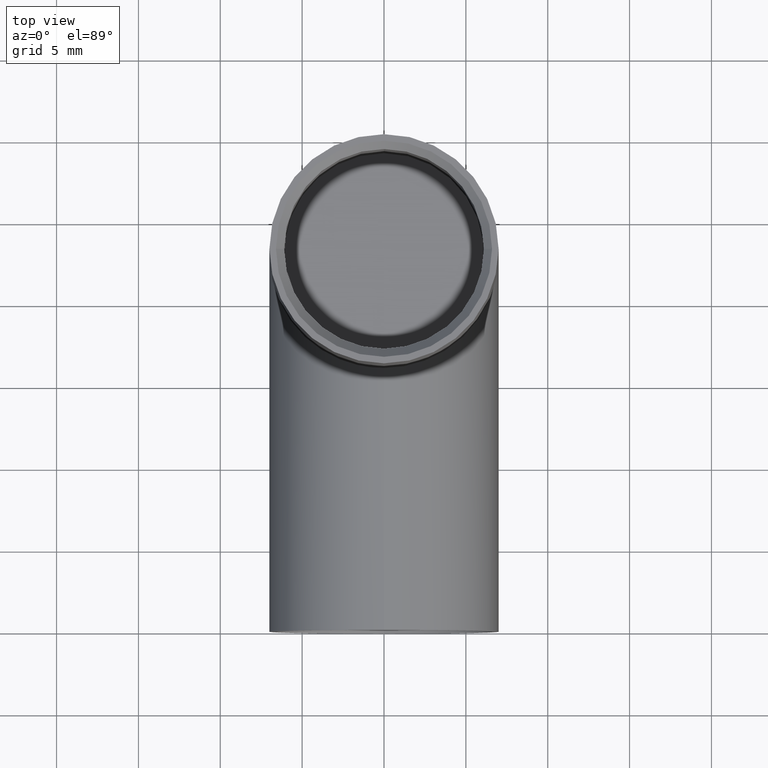
[diagram: clean part render]
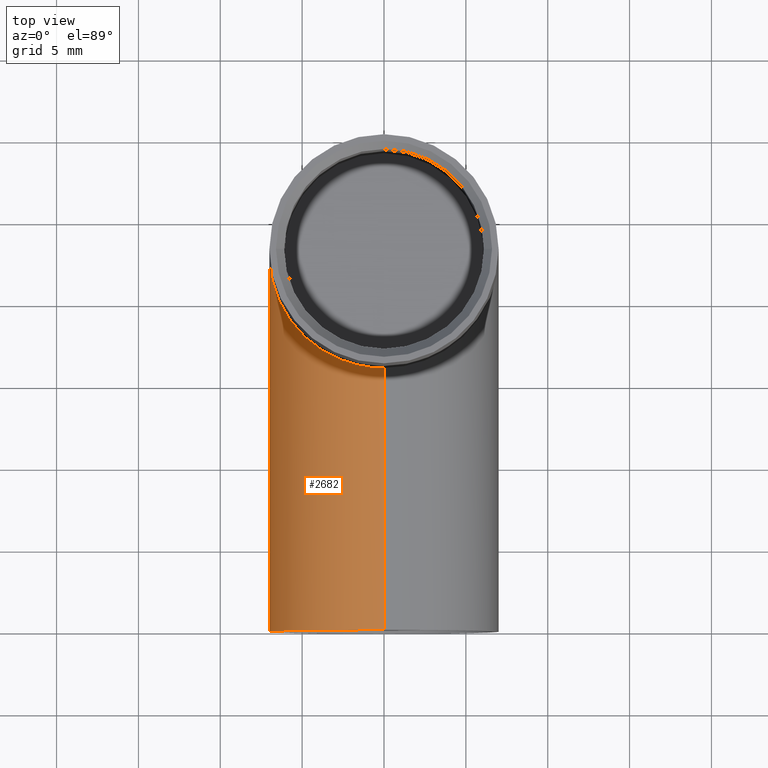
[diagram: same view with one face highlighted and labeled with its STEP entity id]
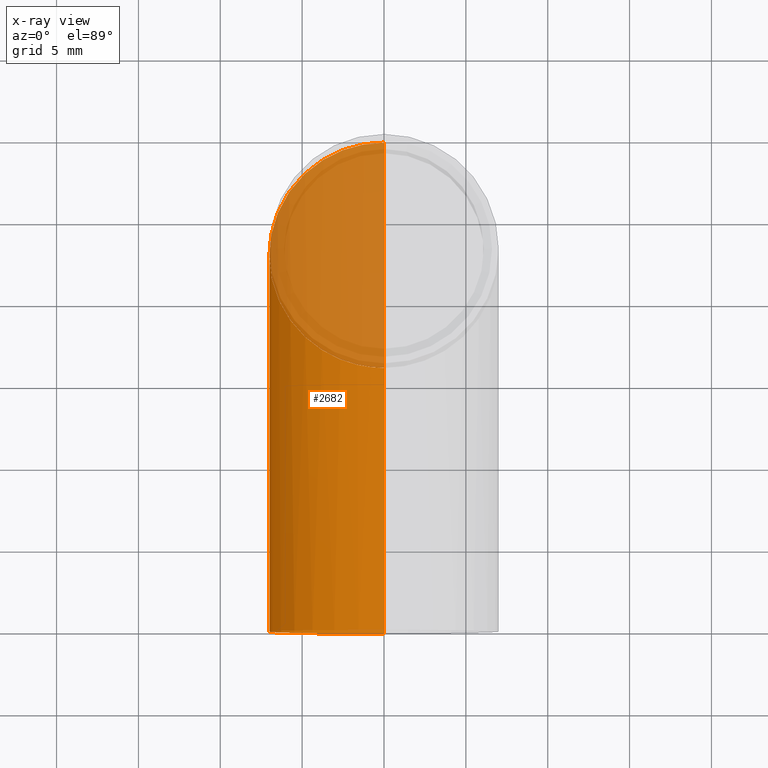
[diagram: x-ray of the same camera — body ghosted, the highlighted face saturated]
A machine part, top view. The second image highlights one B-rep face of the part: STEP entity #2682.
The next image is the same camera in x-ray: the body ghosted, the highlighted face saturated — about 38% of this face is hidden behind the body in this view.
In plain terms, the highlighted cylindrical surface (partial cylindrical patch) has radius 7 mm, axis along (-0, -1, -0).
Its self-contained STEP definition (entity closure, byte-faithful):
#388 = ORIENTED_EDGE ( 'NONE', *, *, #4598, .T. ) ;
#832 = CIRCLE ( 'NONE', #5502, 7.000000000000000000 ) ;
#1149 = CYLINDRICAL_SURFACE ( 'NONE', #5086, 7.000000000000000000 ) ;
#1489 = ORIENTED_EDGE ( 'NONE', *, *, #10112, .F. ) ;
#1540 = CARTESIAN_POINT ( 'NONE',  ( 8.572527594031473190E-16, 42.79898987322332715, 7.000000000000000000 ) ) ;
#1588 = EDGE_CURVE ( 'NONE', #4719, #9612, #5037, .T. ) ;
#1772 = CARTESIAN_POINT ( 'NONE',  ( -7.000000000000000000, 23.00000000000000000, 0.000000000000000000 ) ) ;
#2090 = CARTESIAN_POINT ( 'NONE',  ( 0.000000000000000000, 0.000000000000000000, 0.000000000000000000 ) ) ;
#2193 = EDGE_LOOP ( 'NONE', ( #6268, #1489, #9346, #4943, #388 ) ) ;
#2411 = VERTEX_POINT ( 'NONE', #6684 ) ;
#2480 = CARTESIAN_POINT ( 'NONE',  ( 0.000000000000000000, 42.79898987322332715, 0.000000000000000000 ) ) ;
#2682 = ADVANCED_FACE ( 'NONE', ( #9357 ), #1149, .T. ) ;
#3593 = CARTESIAN_POINT ( 'NONE',  ( 0.000000000000000000, 30.00000000000000355, -7.000000000000000000 ) ) ;
#3716 = CARTESIAN_POINT ( 'NONE',  ( -7.000000000000000888, 27.10050506338833642, -4.100505063388335536 ) ) ;
#4078 = CARTESIAN_POINT ( 'NONE',  ( -4.100505063388336424, 16.00000000000000000, 6.999999999999998224 ) ) ;
#4278 = DIRECTION ( 'NONE',  ( -0.000000000000000000, -1.000000000000000000, -0.000000000000000000 ) ) ;
#4306 = EDGE_CURVE ( 'NONE', #6492, #2411, #12334, .T. ) ;
#4430 = VECTOR ( 'NONE', #5364, 1000.000000000000000 ) ;
#4598 = EDGE_CURVE ( 'NONE', #2411, #9612, #832, .T. ) ;
#4719 = VERTEX_POINT ( 'NONE', #5333 ) ;
#4943 = ORIENTED_EDGE ( 'NONE', *, *, #4306, .T. ) ;
#4959 = CARTESIAN_POINT ( 'NONE',  ( -7.000000000000002665, 18.89949493661166713, 4.100505063388333760 ) ) ;
#5037 = LINE ( 'NONE', #1540, #4430 ) ;
#5086 = AXIS2_PLACEMENT_3D ( 'NONE', #2480, #9134, #6110 ) ;
#5333 = CARTESIAN_POINT ( 'NONE',  ( 8.572527594031473190E-16, 15.99999999999999645, 7.000000000000000000 ) ) ;
#5364 = DIRECTION ( 'NONE',  ( -0.000000000000000000, -1.000000000000000000, -0.000000000000000000 ) ) ;
#5502 = AXIS2_PLACEMENT_3D ( 'NONE', #2090, #8730, #9706 ) ;
#5944 = CARTESIAN_POINT ( 'NONE',  ( 8.572527594031473190E-16, 15.99999999999999645, 7.000000000000000000 ) ) ;
#6110 = DIRECTION ( 'NONE',  ( 0.000000000000000000, 0.000000000000000000, -1.000000000000000000 ) ) ;
#6157 = CARTESIAN_POINT ( 'NONE',  ( 0.000000000000000000, 42.79898987322332715, -7.000000000000000000 ) ) ;
#6268 = ORIENTED_EDGE ( 'NONE', *, *, #1588, .F. ) ;
#6479 =( BOUNDED_CURVE ( )  B_SPLINE_CURVE ( 3, ( #6793, #4959, #4078, #5944 ),
 .UNSPECIFIED., .F., .F. ) 
 B_SPLINE_CURVE_WITH_KNOTS ( ( 4, 4 ),
 ( 4.712388980384689674, 6.283185307179586232 ),
 .UNSPECIFIED. ) 
 CURVE ( )  GEOMETRIC_REPRESENTATION_ITEM ( )  RATIONAL_B_SPLINE_CURVE ( ( 1.000000000000000000, 0.8047378541243649375, 0.8047378541243649375, 1.000000000000000000 ) ) 
 REPRESENTATION_ITEM ( '' )  );
#6492 = VERTEX_POINT ( 'NONE', #10904 ) ;
#6684 = CARTESIAN_POINT ( 'NONE',  ( 0.000000000000000000, 0.000000000000000000, -7.000000000000000000 ) ) ;
#6793 = CARTESIAN_POINT ( 'NONE',  ( -7.000000000000000000, 23.00000000000000000, 0.000000000000000000 ) ) ;
#7103 = CARTESIAN_POINT ( 'NONE',  ( -7.000000000000000000, 23.00000000000000000, 0.000000000000000000 ) ) ;
#7432 = CARTESIAN_POINT ( 'NONE',  ( -4.100505063388335536, 30.00000000000000000, -7.000000000000000888 ) ) ;
#8335 = CARTESIAN_POINT ( 'NONE',  ( 8.572527594031473190E-16, 0.000000000000000000, 7.000000000000000000 ) ) ;
#8730 = DIRECTION ( 'NONE',  ( 0.000000000000000000, 1.000000000000000000, 0.000000000000000000 ) ) ;
#9134 = DIRECTION ( 'NONE',  ( -0.000000000000000000, -1.000000000000000000, -0.000000000000000000 ) ) ;
#9346 = ORIENTED_EDGE ( 'NONE', *, *, #9914, .F. ) ;
#9357 = FACE_OUTER_BOUND ( 'NONE', #2193, .T. ) ;
#9612 = VERTEX_POINT ( 'NONE', #8335 ) ;
#9706 = DIRECTION ( 'NONE',  ( 0.000000000000000000, 0.000000000000000000, 1.000000000000000000 ) ) ;
#9914 = EDGE_CURVE ( 'NONE', #6492, #11529, #12035, .T. ) ;
#10112 = EDGE_CURVE ( 'NONE', #11529, #4719, #6479, .T. ) ;
#10904 = CARTESIAN_POINT ( 'NONE',  ( 0.000000000000000000, 30.00000000000000355, -7.000000000000000000 ) ) ;
#11529 = VERTEX_POINT ( 'NONE', #7103 ) ;
#11712 = VECTOR ( 'NONE', #4278, 1000.000000000000000 ) ;
#12035 =( BOUNDED_CURVE ( )  B_SPLINE_CURVE ( 3, ( #3593, #7432, #3716, #1772 ),
 .UNSPECIFIED., .F., .T. ) 
 B_SPLINE_CURVE_WITH_KNOTS ( ( 4, 4 ),
 ( 3.141592653589793116, 4.712388980384689674 ),
 .UNSPECIFIED. ) 
 CURVE ( )  GEOMETRIC_REPRESENTATION_ITEM ( )  RATIONAL_B_SPLINE_CURVE ( ( 1.000000000000000000, 0.8047378541243649375, 0.8047378541243649375, 1.000000000000000000 ) ) 
 REPRESENTATION_ITEM ( '' )  );
#12334 = LINE ( 'NONE', #6157, #11712 ) ;